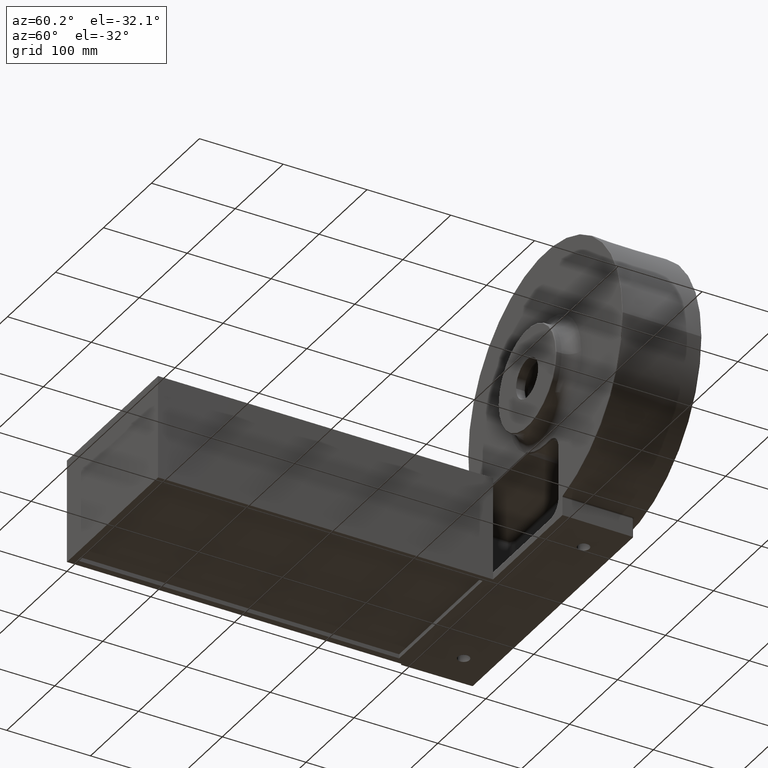
[diagram: clean part render]
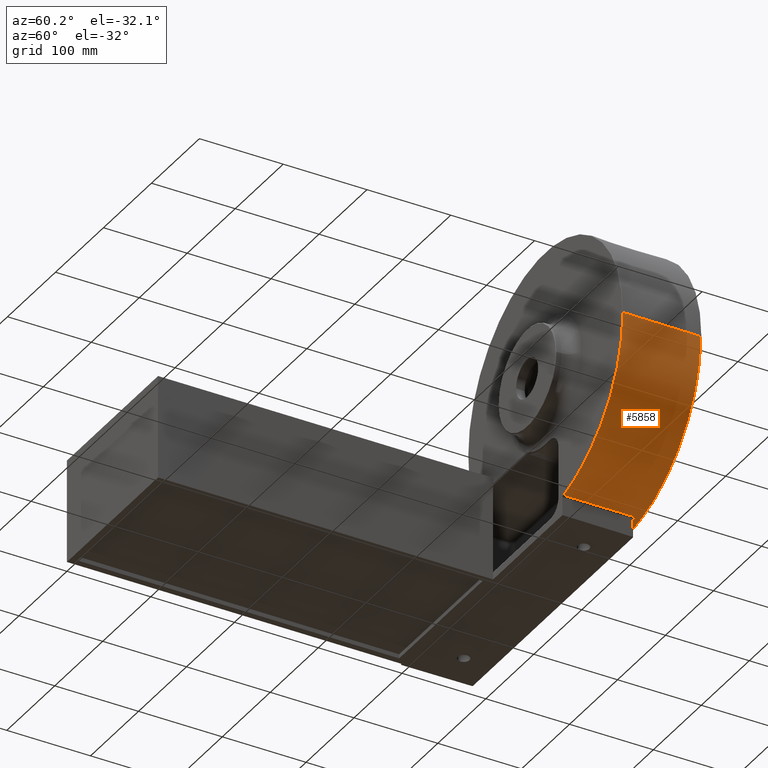
[diagram: same view with one face highlighted and labeled with its STEP entity id]
A machine part, auxiliary view. The second image highlights one B-rep face of the part: STEP entity #5858.
In plain terms, the highlighted conical surface has half-angle 0.5 deg.
Its self-contained STEP definition (entity closure, byte-faithful):
#47 = CARTESIAN_POINT ( 'NONE',  ( 147.4516301976339605, 484.0086265354984221, 3.662412864575192994 ) ) ;
#146 = AXIS2_PLACEMENT_3D ( 'NONE', #4989, #4975, #4962 ) ;
#180 = EDGE_CURVE ( 'NONE', #10618, #819, #2144, .T. ) ;
#313 = CARTESIAN_POINT ( 'NONE',  ( 146.6137793264279878, 415.1693106455702491, 4.253364809703204408 ) ) ;
#527 = AXIS2_PLACEMENT_3D ( 'NONE', #8781, #8752, #8748 ) ;
#681 = ORIENTED_EDGE ( 'NONE', *, *, #4733, .F. ) ;
#790 = CARTESIAN_POINT ( 'NONE',  ( 148.5369350850078263, 486.9824469290032880, 0.6996520215690749112 ) ) ;
#819 = VERTEX_POINT ( 'NONE', #7086 ) ;
#1150 = ORIENTED_EDGE ( 'NONE', *, *, #6779, .F. ) ;
#1200 = CARTESIAN_POINT ( 'NONE',  ( 146.4682185469170292, 403.1706356801079778, 4.356375223496740112 ) ) ;
#1382 = DIRECTION ( 'NONE',  ( 0.008726535498366154442, -0.9999619230641713097, -1.068692376572001036E-18 ) ) ;
#1419 = CARTESIAN_POINT ( 'NONE',  ( 148.5369350850078263, 486.9824469290032880, 0.6996520215690749112 ) ) ;
#1420 = AXIS2_PLACEMENT_3D ( 'NONE', #6889, #6856, #6842 ) ;
#1431 = CARTESIAN_POINT ( 'NONE',  ( 148.4671144433309564, 486.9824469290033448, 0.8892963782683066531 ) ) ;
#1437 = CARTESIAN_POINT ( 'NONE',  ( 458.7417837622144248, 494.0086265354983084, 55.99999999999997158 ) ) ;
#1445 = CARTESIAN_POINT ( 'NONE',  ( 148.3985792692308507, 486.9641813299858200, 1.076094941726470910 ) ) ;
#1471 = CARTESIAN_POINT ( 'NONE',  ( 148.2639516857346962, 486.8923854358345693, 1.444183517163451835 ) ) ;
#1475 = CARTESIAN_POINT ( 'NONE',  ( 148.1973996167265852, 486.8383278414008259, 1.626739743355116508 ) ) ;
#1485 = CARTESIAN_POINT ( 'NONE',  ( 148.0688912812916840, 486.6946834881755990, 1.980153652051138469 ) ) ;
#1490 = CARTESIAN_POINT ( 'NONE',  ( 148.0079364493269907, 486.6065179060148580, 2.148246625084608841 ) ) ;
#1504 = CARTESIAN_POINT ( 'NONE',  ( 147.8924020744642860, 486.3977732141282218, 2.467287661314340408 ) ) ;
#1512 = EDGE_CURVE ( 'NONE', #3642, #7969, #4896, .T. ) ;
#1532 = CARTESIAN_POINT ( 'NONE',  ( 147.8372663251846859, 486.2755930902484351, 2.619776929976513014 ) ) ;
#1535 = CARTESIAN_POINT ( 'NONE',  ( 147.7368275690007806, 486.0039311386034342, 2.897422179937290565 ) ) ;
#1544 = CARTESIAN_POINT ( 'NONE',  ( 147.6916516252588565, 485.8555034925357745, 3.022222765179582105 ) ) ;
#1550 = CARTESIAN_POINT ( 'NONE',  ( 147.6112765326985539, 485.5331943081408212, 3.243412051756143999 ) ) ;
#1565 = CARTESIAN_POINT ( 'NONE',  ( 147.5758413960549831, 485.3571892203596008, 3.340428837566070897 ) ) ;
#1590 = CARTESIAN_POINT ( 'NONE',  ( 147.5183423500001254, 484.9934499742786329, 3.496099186037874507 ) ) ;
#1595 = CARTESIAN_POINT ( 'NONE',  ( 147.4958530878877809, 484.8047142362743784, 3.555937499992647854 ) ) ;
#1607 = CARTESIAN_POINT ( 'NONE',  ( 147.4636296568250202, 484.4131065440884072, 3.638511375928905611 ) ) ;
#1624 = CARTESIAN_POINT ( 'NONE',  ( 147.4540999017565071, 484.2109970757782662, 3.660675718344928775 ) ) ;
#1651 = CARTESIAN_POINT ( 'NONE',  ( 147.4516301976339605, 484.0086265354984221, 3.662412864575192994 ) ) ;
#1828 = VECTOR ( 'NONE', #10332, 1000.000000000000227 ) ;
#2079 = CARTESIAN_POINT ( 'NONE',  ( 138.7417837622145385, 494.0086265354983084, 55.99999999999999289 ) ) ;
#2144 = LINE ( 'NONE', #1437, #9563 ) ;
#2271 = CIRCLE ( 'NONE', #8765, 159.9999999999999147 ) ;
#2524 = ORIENTED_EDGE ( 'NONE', *, *, #4250, .F. ) ;
#2599 = VERTEX_POINT ( 'NONE', #9113 ) ;
#2694 = ORIENTED_EDGE ( 'NONE', *, *, #1512, .F. ) ;
#2909 = DIRECTION ( 'NONE',  ( 1.000000000000000000, 0.0000000000000000000, 0.0000000000000000000 ) ) ;
#2923 = DIRECTION ( 'NONE',  ( -1.214623636765614367E-16, -1.000000000000000000, -0.0000000000000000000 ) ) ;
#2935 = CARTESIAN_POINT ( 'NONE',  ( 298.7417837622144816, 400.5042632677491952, 55.99999999999999289 ) ) ;
#2976 = CARTESIAN_POINT ( 'NONE',  ( 147.4516301976339605, 484.0086265354984221, 3.662412864575192994 ) ) ;
#3155 = DIRECTION ( 'NONE',  ( 1.000000000000000000, 0.0000000000000000000, 0.0000000000000000000 ) ) ;
#3169 = DIRECTION ( 'NONE',  ( -1.214623636765614367E-16, -1.000000000000000000, -0.0000000000000000000 ) ) ;
#3182 = CARTESIAN_POINT ( 'NONE',  ( 298.7417837622144816, 494.0086265354983084, 55.99999999999999289 ) ) ;
#3186 = CIRCLE ( 'NONE', #9658, 160.8160002160960005 ) ;
#3642 = VERTEX_POINT ( 'NONE', #790 ) ;
#3837 = CARTESIAN_POINT ( 'NONE',  ( 146.6785358418549094, 420.5020543206502452, 4.207583419631566457 ) ) ;
#4182 = ORIENTED_EDGE ( 'NONE', *, *, #5230, .F. ) ;
#4250 = EDGE_CURVE ( 'NONE', #7969, #5700, #9738, .T. ) ;
#4463 = ORIENTED_EDGE ( 'NONE', *, *, #10149, .F. ) ;
#4528 = B_SPLINE_CURVE_WITH_KNOTS ( 'NONE', 3,
 ( #1651, #1624, #1607, #1595, #1590, #1565, #1550, #1544, #1535, #1532, #1504, #1490, #1485, #1475, #1471, #1445, #1431, #1419 ),
 .UNSPECIFIED., .F., .F.,
 ( 4, 2, 2, 2, 2, 2, 2, 2, 4 ),
 ( 0.0000000000000000000, 0.0006053122462416626881, 0.001210624492483325376, 0.001815936738724988064, 0.002421248984966650752, 0.003026561231208313441, 0.003631873477449976129, 0.004237185723691638817, 0.004842497969933301505 ),
 .UNSPECIFIED. ) ;
#4537 = VERTEX_POINT ( 'NONE', #6790 ) ;
#4685 = CARTESIAN_POINT ( 'NONE',  ( 146.4843874894721694, 404.5038218410126092, 4.344929549509712885 ) ) ;
#4733 = EDGE_CURVE ( 'NONE', #4738, #819, #10082, .T. ) ;
#4738 = VERTEX_POINT ( 'NONE', #4959 ) ;
#4896 = CIRCLE ( 'NONE', #1420, 160.0613165404999165 ) ;
#4959 = CARTESIAN_POINT ( 'NONE',  ( 336.0155495831571102, 400.5042632677491952, -100.4367357976664863 ) ) ;
#4962 = DIRECTION ( 'NONE',  ( 1.000000000000000000, 0.0000000000000000000, 0.0000000000000000000 ) ) ;
#4975 = DIRECTION ( 'NONE',  ( -1.214623636765614367E-16, -1.000000000000000000, -0.0000000000000000000 ) ) ;
#4989 = CARTESIAN_POINT ( 'NONE',  ( 298.7417837622144816, 400.5042632677491952, 55.99999999999999289 ) ) ;
#5040 = ORIENTED_EDGE ( 'NONE', *, *, #8658, .F. ) ;
#5230 = EDGE_CURVE ( 'NONE', #5353, #3642, #4528, .T. ) ;
#5353 = VERTEX_POINT ( 'NONE', #47 ) ;
#5501 = CONICAL_SURFACE ( 'NONE', #527, 159.9999999999999432, 0.008726646259963988933 ) ;
#5552 = CARTESIAN_POINT ( 'NONE',  ( 146.4358882150477257, 400.5042632677491952, 4.379266693712080993 ) ) ;
#5599 = EDGE_CURVE ( 'NONE', #8821, #4537, #10367, .T. ) ;
#5700 = VERTEX_POINT ( 'NONE', #9883 ) ;
#5824 = EDGE_LOOP ( 'NONE', ( #10874, #10962, #681, #1150, #2524, #2694, #4182, #4463, #5040, #6212 ) ) ;
#5858 = ADVANCED_FACE ( 'NONE', ( #8795 ), #5501, .T. ) ;
#6212 = ORIENTED_EDGE ( 'NONE', *, *, #5599, .F. ) ;
#6229 = B_SPLINE_CURVE_WITH_KNOTS ( 'NONE', 3,
 ( #10632, #10619, #10610, #10588, #10572, #10517, #10505, #10470, #10459, #10451 ),
 .UNSPECIFIED., .F., .F.,
 ( 4, 3, 3, 4 ),
 ( 0.0000000000000000000, 0.004000000000000720861, 0.02000000000009076115, 0.08350948454244012942 ),
 .UNSPECIFIED. ) ;
#6779 = EDGE_CURVE ( 'NONE', #5700, #4738, #6229, .T. ) ;
#6790 = CARTESIAN_POINT ( 'NONE',  ( 137.9257835461185380, 400.5042632677492520, 55.99999999999997158 ) ) ;
#6842 = DIRECTION ( 'NONE',  ( -1.000000000000000000, 0.0000000000000000000, 0.0000000000000000000 ) ) ;
#6856 = DIRECTION ( 'NONE',  ( -1.214623636765614367E-16, -1.000000000000000000, 0.0000000000000000000 ) ) ;
#6889 = CARTESIAN_POINT ( 'NONE',  ( 298.7417837622144816, 486.9824469290032880, 55.99999999999999289 ) ) ;
#7086 = CARTESIAN_POINT ( 'NONE',  ( 459.5577839783105105, 400.5042632677491952, 55.99999999999999289 ) ) ;
#7372 = CARTESIAN_POINT ( 'NONE',  ( 146.9355933760703579, 441.6709194252854900, 4.025849563707081913 ) ) ;
#7388 = CARTESIAN_POINT ( 'NONE',  ( 332.3307868357554185, 486.9824469290032880, -100.4972968622901419 ) ) ;
#7517 = B_SPLINE_CURVE_WITH_KNOTS ( 'NONE', 3,
 ( #5552, #9139, #1200, #4685, #8268, #313, #3837, #7372, #10799, #2976 ),
 .UNSPECIFIED., .F., .F.,
 ( 4, 3, 3, 4 ),
 ( 0.0000000000000000000, 0.004000000000007106378, 0.02000000000089464242, 0.08351361746972117694 ),
 .UNSPECIFIED. ) ;
#7969 = VERTEX_POINT ( 'NONE', #7388 ) ;
#8268 = CARTESIAN_POINT ( 'NONE',  ( 146.5490632596945204, 409.8365664847744938, 4.299146853560374737 ) ) ;
#8588 = EDGE_CURVE ( 'NONE', #8821, #10618, #2271, .T. ) ;
#8658 = EDGE_CURVE ( 'NONE', #4537, #2599, #3186, .T. ) ;
#8748 = DIRECTION ( 'NONE',  ( -1.000000000000000000, 0.0000000000000000000, 0.0000000000000000000 ) ) ;
#8752 = DIRECTION ( 'NONE',  ( -1.214623636765614367E-16, -1.000000000000000000, 0.0000000000000000000 ) ) ;
#8765 = AXIS2_PLACEMENT_3D ( 'NONE', #3182, #3169, #3155 ) ;
#8781 = CARTESIAN_POINT ( 'NONE',  ( 298.7417837622144816, 494.0086265354983084, 55.99999999999999289 ) ) ;
#8795 = FACE_OUTER_BOUND ( 'NONE', #5824, .T. ) ;
#8821 = VERTEX_POINT ( 'NONE', #2079 ) ;
#9113 = CARTESIAN_POINT ( 'NONE',  ( 146.4358882150477257, 400.5042632677491952, 4.379266693712080993 ) ) ;
#9139 = CARTESIAN_POINT ( 'NONE',  ( 146.4520521228983512, 401.8374494890059054, 4.367820938239667328 ) ) ;
#9142 = CARTESIAN_POINT ( 'NONE',  ( 335.2937255072109224, 484.0086265354984221, -99.85855493819684625 ) ) ;
#9147 = CARTESIAN_POINT ( 'NONE',  ( 335.2920138562644183, 484.2066477387564305, -99.85718136315297500 ) ) ;
#9164 = CARTESIAN_POINT ( 'NONE',  ( 335.2711556936855573, 484.4012035384166666, -99.86033258973183990 ) ) ;
#9198 = CARTESIAN_POINT ( 'NONE',  ( 335.1927010387902328, 484.7836671635942025, -99.87527162062471575 ) ) ;
#9202 = CARTESIAN_POINT ( 'NONE',  ( 335.1341363248586163, 484.9735780491665764, -99.88726734666468587 ) ) ;
#9216 = CARTESIAN_POINT ( 'NONE',  ( 334.9828773948617027, 485.3345602550880358, -99.91926761383197686 ) ) ;
#9248 = CARTESIAN_POINT ( 'NONE',  ( 334.8907693199703317, 485.5056361484065519, -99.93913587545017663 ) ) ;
#9251 = CARTESIAN_POINT ( 'NONE',  ( 334.6738707014216061, 485.8291360435165416, -99.98636019396123231 ) ) ;
#9265 = CARTESIAN_POINT ( 'NONE',  ( 334.5484202263902489, 485.9815280725781008, -100.0138638818614680 ) ) ;
#9276 = CARTESIAN_POINT ( 'NONE',  ( 334.1384526152853596, 486.3910435890310282, -100.1039121721196778 ) ) ;
#9297 = CARTESIAN_POINT ( 'NONE',  ( 333.8095640458062690, 486.6107439608471168, -100.1763272219574787 ) ) ;
#9301 = CARTESIAN_POINT ( 'NONE',  ( 333.2793204709956285, 486.8311464680238032, -100.2921591952993623 ) ) ;
#9315 = CARTESIAN_POINT ( 'NONE',  ( 333.0938908221352790, 486.8878081997137315, -100.3325290048744733 ) ) ;
#9330 = CARTESIAN_POINT ( 'NONE',  ( 332.7156690025709622, 486.9634253755816076, -100.4144838442403511 ) ) ;
#9350 = CARTESIAN_POINT ( 'NONE',  ( 332.5243485967484389, 486.9824469290033448, -100.4557527160635289 ) ) ;
#9355 = CARTESIAN_POINT ( 'NONE',  ( 332.3307868357554185, 486.9824469290032880, -100.4972968622901419 ) ) ;
#9563 = VECTOR ( 'NONE', #1382, 1000.000000000000227 ) ;
#9658 = AXIS2_PLACEMENT_3D ( 'NONE', #2935, #2923, #2909 ) ;
#9738 = B_SPLINE_CURVE_WITH_KNOTS ( 'NONE', 3,
 ( #9355, #9350, #9330, #9315, #9301, #9297, #9276, #9265, #9251, #9248, #9216, #9202, #9198, #9164, #9147, #9142 ),
 .UNSPECIFIED., .F., .F.,
 ( 4, 2, 2, 2, 2, 2, 2, 4 ),
 ( 0.0000000000000000000, 0.0005898010917195168961, 0.001179602183439033792, 0.002359204366878004267, 0.002949005458597486577, 0.003538806550316968020, 0.004128607642036451197, 0.004718408733755933074 ),
 .UNSPECIFIED. ) ;
#9883 = CARTESIAN_POINT ( 'NONE',  ( 335.2937255072109224, 484.0086265354984221, -99.85855493819684625 ) ) ;
#9936 = CARTESIAN_POINT ( 'NONE',  ( 458.7417837622144248, 494.0086265354983084, 55.99999999999997158 ) ) ;
#10082 = CIRCLE ( 'NONE', #146, 160.8160002160960005 ) ;
#10149 = EDGE_CURVE ( 'NONE', #2599, #5353, #7517, .T. ) ;
#10332 = DIRECTION ( 'NONE',  ( -0.008726535498366397303, -0.9999619230641713097, 0.0000000000000000000 ) ) ;
#10355 = CARTESIAN_POINT ( 'NONE',  ( 138.7417837622145385, 494.0086265354983084, 55.99999999999999289 ) ) ;
#10367 = LINE ( 'NONE', #10355, #1828 ) ;
#10451 = CARTESIAN_POINT ( 'NONE',  ( 336.0155495831571102, 400.5042632677491952, -100.4367357976664863 ) ) ;
#10459 = CARTESIAN_POINT ( 'NONE',  ( 335.8325578246042937, 421.6727949573291880, -100.2904303401281112 ) ) ;
#10470 = CARTESIAN_POINT ( 'NONE',  ( 335.6495720112066010, 442.8413253135092305, -100.1439243809392110 ) ) ;
#10505 = CARTESIAN_POINT ( 'NONE',  ( 335.4665922041128283, 464.0098543196432956, -99.99721626932628737 ) ) ;
#10517 = CARTESIAN_POINT ( 'NONE',  ( 335.4204939412354634, 469.3428603510273547, -99.96025596642294886 ) ) ;
#10572 = CARTESIAN_POINT ( 'NONE',  ( 335.3743960595766112, 474.6758662968002227, -99.92328283296136249 ) ) ;
#10588 = CARTESIAN_POINT ( 'NONE',  ( 335.3282985601225050, 480.0088721566929166, -99.88629684231858619 ) ) ;
#10610 = CARTESIAN_POINT ( 'NONE',  ( 335.3167741852590211, 481.3421236216624379, -99.87705034465791698 ) ) ;
#10618 = VERTEX_POINT ( 'NONE', #9936 ) ;
#10619 = CARTESIAN_POINT ( 'NONE',  ( 335.3052498342834156, 482.6753750812656563, -99.86780304342296688 ) ) ;
#10632 = CARTESIAN_POINT ( 'NONE',  ( 335.2937255072109224, 484.0086265354984221, -99.85855493819684625 ) ) ;
#10799 = CARTESIAN_POINT ( 'NONE',  ( 147.1932882711352875, 462.8397768886608219, 3.844126009740382877 ) ) ;
#10874 = ORIENTED_EDGE ( 'NONE', *, *, #8588, .T. ) ;
#10962 = ORIENTED_EDGE ( 'NONE', *, *, #180, .T. ) ;